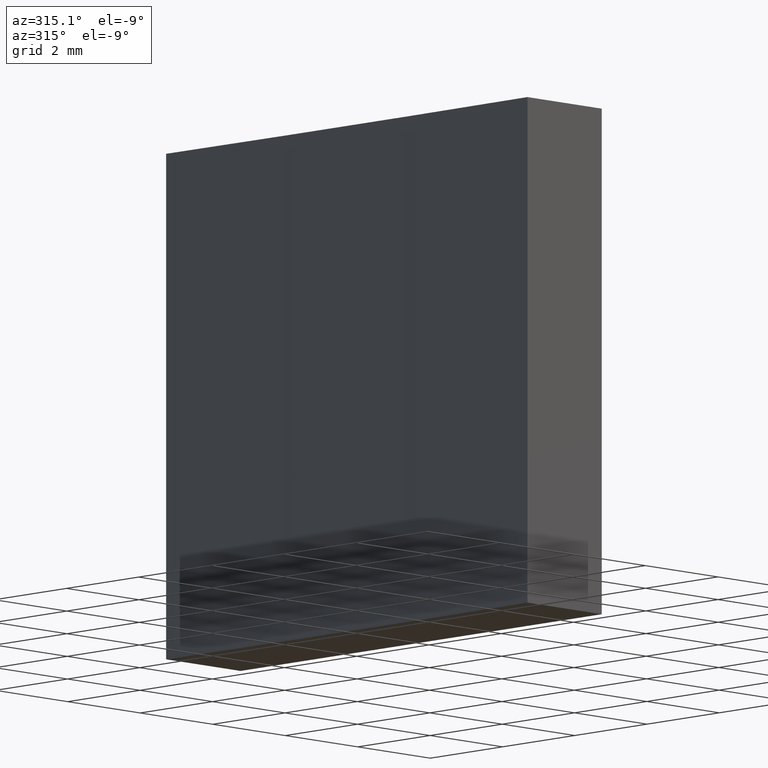
[diagram: clean part render]
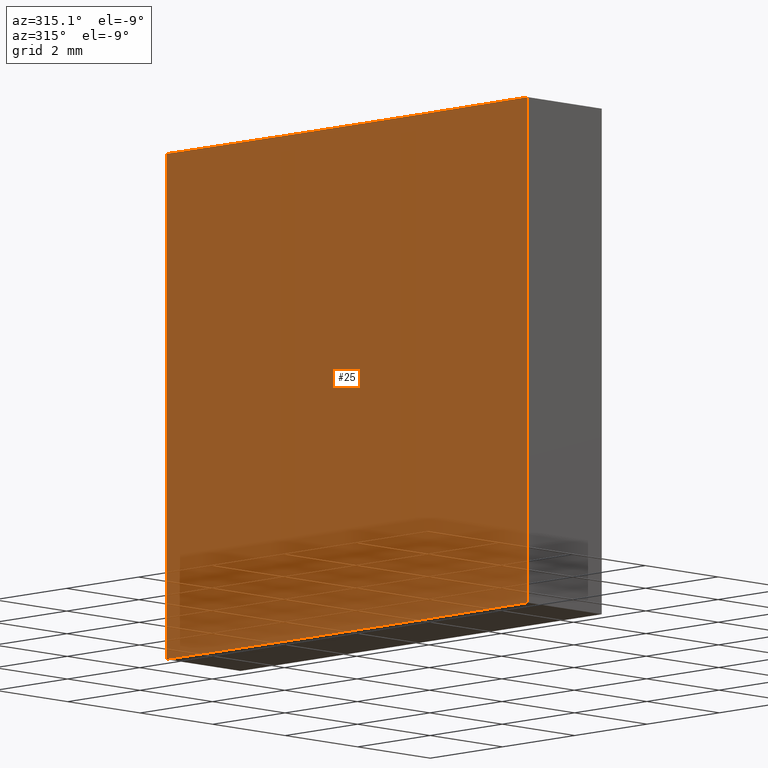
[diagram: same view with one face highlighted and labeled with its STEP entity id]
A machine part, auxiliary view. The second image highlights one B-rep face of the part: STEP entity #25.
In plain terms, the highlighted cylindrical surface (partial cylindrical patch) has radius 258.5 mm, axis along (-0, -0, -1).
Its self-contained STEP definition (entity closure, byte-faithful):
#9 = ORIENTED_EDGE ( 'NONE', *, *, #74, .F. ) ;
#12 = DIRECTION ( 'NONE',  ( -0.000000000000000000, -0.000000000000000000, -1.000000000000000000 ) ) ;
#24 = ORIENTED_EDGE ( 'NONE', *, *, #109, .F. ) ;
#25 = ADVANCED_FACE ( 'NONE', ( #60 ), #229, .F. ) ;
#26 = VERTEX_POINT ( 'NONE', #214 ) ;
#30 = ORIENTED_EDGE ( 'NONE', *, *, #138, .T. ) ;
#33 = CARTESIAN_POINT ( 'NONE',  ( 124.5901433497258921, 93.86223563107158441, 10.00000000000000000 ) ) ;
#41 = AXIS2_PLACEMENT_3D ( 'NONE', #70, #153, #87 ) ;
#45 = DIRECTION ( 'NONE',  ( -0.000000000000000000, -0.000000000000000000, -1.000000000000000000 ) ) ;
#59 = CIRCLE ( 'NONE', #154, 258.4999999999999432 ) ;
#60 = FACE_OUTER_BOUND ( 'NONE', #102, .T. ) ;
#63 = VERTEX_POINT ( 'NONE', #89 ) ;
#67 = LINE ( 'NONE', #217, #134 ) ;
#70 = CARTESIAN_POINT ( 'NONE',  ( -133.8614962271976196, 88.86223563107161283, 10.00000000000000000 ) ) ;
#74 = EDGE_CURVE ( 'NONE', #63, #200, #205, .T. ) ;
#80 = CARTESIAN_POINT ( 'NONE',  ( 124.5901433497259063, 83.86223563107159862, 10.00000000000000000 ) ) ;
#87 = DIRECTION ( 'NONE',  ( 1.000000000000000000, 0.000000000000000000, 0.000000000000000000 ) ) ;
#89 = CARTESIAN_POINT ( 'NONE',  ( 124.5901433497258921, 93.86223563107158441, 10.00000000000000000 ) ) ;
#97 = VERTEX_POINT ( 'NONE', #234 ) ;
#100 = DIRECTION ( 'NONE',  ( -0.000000000000000000, -0.000000000000000000, -1.000000000000000000 ) ) ;
#102 = EDGE_LOOP ( 'NONE', ( #209, #24, #9, #30 ) ) ;
#109 = EDGE_CURVE ( 'NONE', #200, #97, #67, .T. ) ;
#111 = VECTOR ( 'NONE', #100, 1000.000000000000000 ) ;
#134 = VECTOR ( 'NONE', #12, 1000.000000000000000 ) ;
#138 = EDGE_CURVE ( 'NONE', #63, #26, #191, .T. ) ;
#144 = CARTESIAN_POINT ( 'NONE',  ( -133.8614962271976196, 88.86223563107161283, 10.00000000000000000 ) ) ;
#153 = DIRECTION ( 'NONE',  ( -0.000000000000000000, -0.000000000000000000, -1.000000000000000000 ) ) ;
#154 = AXIS2_PLACEMENT_3D ( 'NONE', #228, #222, #162 ) ;
#162 = DIRECTION ( 'NONE',  ( 1.000000000000000000, 0.000000000000000000, 0.000000000000000000 ) ) ;
#181 = EDGE_CURVE ( 'NONE', #26, #97, #59, .T. ) ;
#186 = DIRECTION ( 'NONE',  ( -1.000000000000000000, 0.000000000000000000, 0.000000000000000000 ) ) ;
#191 = LINE ( 'NONE', #33, #111 ) ;
#193 = AXIS2_PLACEMENT_3D ( 'NONE', #144, #45, #186 ) ;
#200 = VERTEX_POINT ( 'NONE', #80 ) ;
#205 = CIRCLE ( 'NONE', #41, 258.4999999999999432 ) ;
#209 = ORIENTED_EDGE ( 'NONE', *, *, #181, .T. ) ;
#214 = CARTESIAN_POINT ( 'NONE',  ( 124.5901433497258921, 93.86223563107158441, 0.000000000000000000 ) ) ;
#217 = CARTESIAN_POINT ( 'NONE',  ( 124.5901433497259063, 83.86223563107159862, 10.00000000000000000 ) ) ;
#222 = DIRECTION ( 'NONE',  ( -0.000000000000000000, -0.000000000000000000, -1.000000000000000000 ) ) ;
#228 = CARTESIAN_POINT ( 'NONE',  ( -133.8614962271976196, 88.86223563107161283, 0.000000000000000000 ) ) ;
#229 = CYLINDRICAL_SURFACE ( 'NONE', #193, 258.4999999999999432 ) ;
#234 = CARTESIAN_POINT ( 'NONE',  ( 124.5901433497259063, 83.86223563107159862, 0.000000000000000000 ) ) ;